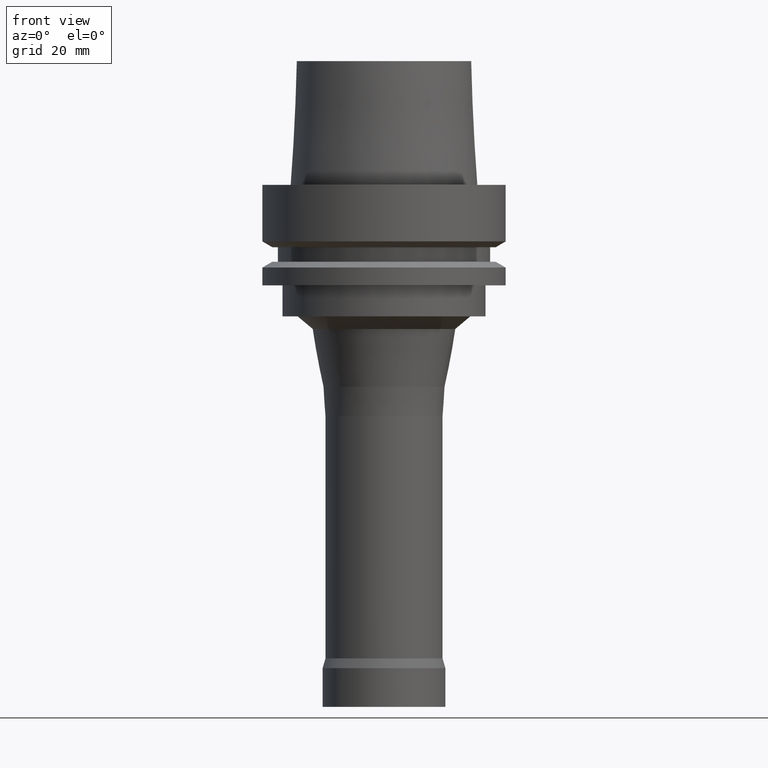
[diagram: clean part render]
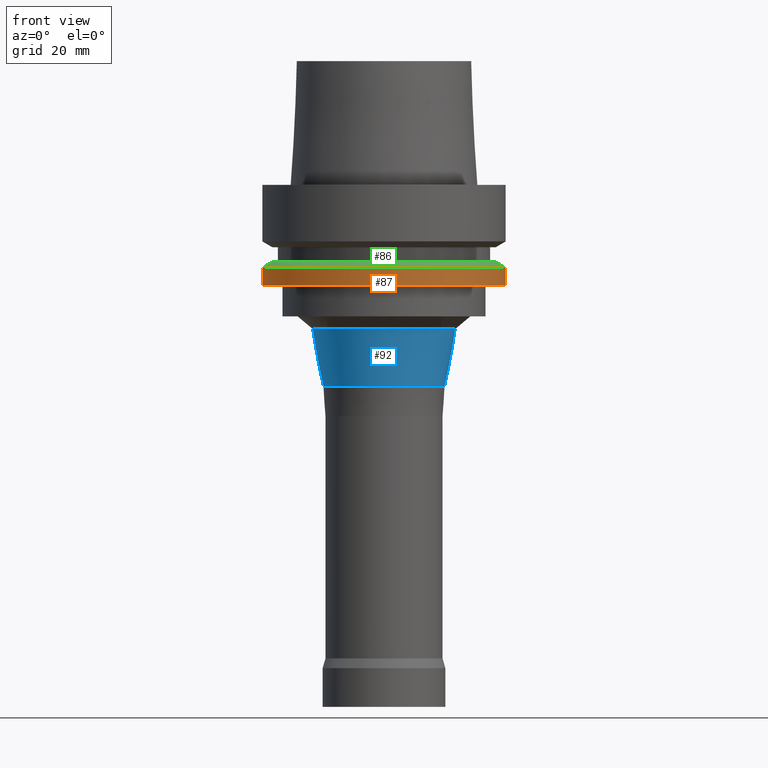
[diagram: same view with three faces highlighted in distinct colors, each labeled with its STEP entity id]
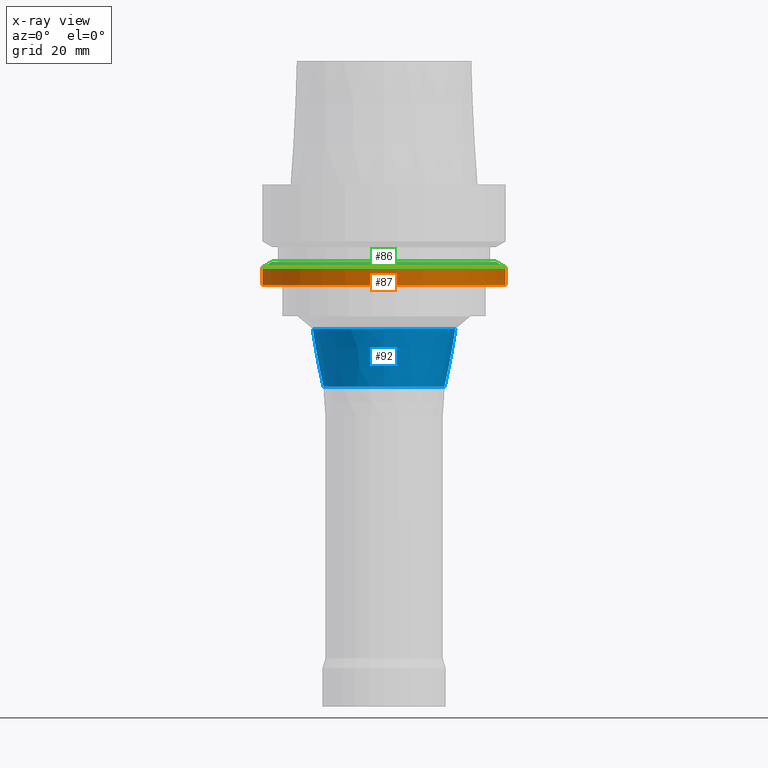
[diagram: x-ray of the same camera — body ghosted, the three highlighted faces saturated]
A machine part, front view with three faces highlighted in distinct colors.
The next image is the same camera in x-ray (body ghosted, the three faces saturated) — at least one of them is partly hidden behind the body in this view.
Their STEP definitions:

[orange] entity #87 — the highlighted cylindrical surface (bore or boss wall) has radius 31.5 mm, axis along (-0, -0, 1).
#87=ADVANCED_FACE('',(#131,#132),#133,.T.);
#131=FACE_BOUND('',#189,.T.);
#132=FACE_BOUND('',#190,.T.);
#133=CYLINDRICAL_SURFACE('',#191,31.5);
#189=EDGE_LOOP('',(#271));
#190=EDGE_LOOP('',(#272));
#191=AXIS2_PLACEMENT_3D('',#273,#274,#275);
#271=ORIENTED_EDGE('',*,*,#323,.F.);
#272=ORIENTED_EDGE('',*,*,#322,.T.);
#273=CARTESIAN_POINT('',(1.45051756469206E-015,2.90103512938411E-015,-23.688749535));
#274=DIRECTION('',(-6.12323399573677E-017,-1.22464679914735E-016,1.0));
#275=DIRECTION('',(-1.23259516440783E-032,1.0,1.22464679914735E-016));
#322=EDGE_CURVE('',#353,#353,#354,.T.);
#323=EDGE_CURVE('',#355,#355,#356,.T.);
#353=VERTEX_POINT('',#391);
#354=CIRCLE('',#392,31.5);
#355=VERTEX_POINT('',#393);
#356=CIRCLE('',#394,31.5);
#391=CARTESIAN_POINT('',(1.30899429049255E-015,31.5,-21.37749907));
#392=AXIS2_PLACEMENT_3D('',#441,#442,#443);
#393=CARTESIAN_POINT('',(1.59204083889156E-015,31.5,-26.0));
#394=AXIS2_PLACEMENT_3D('',#444,#445,#446);
#441=CARTESIAN_POINT('',(1.30899429049255E-015,2.6179885809851E-015,-21.37749907));
#442=DIRECTION('',(6.12323399573677E-017,1.22464679914735E-016,-1.0));
#443=DIRECTION('',(-1.23259516440783E-032,1.0,1.22464679914735E-016));
#444=CARTESIAN_POINT('',(1.59204083889156E-015,3.18408167778312E-015,-26.0));
#445=DIRECTION('',(6.12323399573677E-017,1.22464679914735E-016,-1.0));
#446=DIRECTION('',(-1.23259516440783E-032,1.0,1.22464679914735E-016));

[blue] entity #92 — the highlighted conical surface has half-angle 10.626 deg.
#92=ADVANCED_FACE('',(#146,#147),#148,.T.);
#146=FACE_BOUND('',#204,.T.);
#147=FACE_BOUND('',#205,.T.);
#148=CONICAL_SURFACE('',#206,17.166544215,0.185466459168615);
#204=EDGE_LOOP('',(#296));
#205=EDGE_LOOP('',(#297));
#206=AXIS2_PLACEMENT_3D('',#298,#299,#300);
#296=ORIENTED_EDGE('',*,*,#314,.F.);
#297=ORIENTED_EDGE('',*,*,#327,.T.);
#298=CARTESIAN_POINT('',(2.73923572440001E-015,5.47847144880001E-015,-44.73511426));
#299=DIRECTION('',(-6.12323399573677E-017,-1.22464679914735E-016,1.0));
#300=DIRECTION('',(-1.23259516440783E-032,1.0,1.22464679914735E-016));
#314=EDGE_CURVE('',#337,#337,#338,.T.);
#327=EDGE_CURVE('',#363,#363,#364,.T.);
#337=VERTEX_POINT('',#375);
#338=CIRCLE('',#376,15.76448979);
#363=VERTEX_POINT('',#401);
#364=CIRCLE('',#402,18.56859864);
#375=CARTESIAN_POINT('',(3.19680873208101E-015,15.76448979,-52.20784857));
#376=AXIS2_PLACEMENT_3D('',#417,#418,#419);
#401=CARTESIAN_POINT('',(2.281662716719E-015,18.56859864,-37.26237995));
#402=AXIS2_PLACEMENT_3D('',#456,#457,#458);
#417=CARTESIAN_POINT('',(3.19680873208101E-015,6.39361746416202E-015,-52.20784857));
#418=DIRECTION('',(6.12323399573677E-017,1.22464679914735E-016,-1.0));
#419=DIRECTION('',(-1.23259516440783E-032,1.0,1.22464679914735E-016));
#456=CARTESIAN_POINT('',(2.281662716719E-015,4.563325433438E-015,-37.26237995));
#457=DIRECTION('',(6.12323399573677E-017,1.22464679914735E-016,-1.0));
#458=DIRECTION('',(-1.23259516440783E-032,1.0,1.22464679914735E-016));

[green] entity #86 — the highlighted conical surface has half-angle 60 deg.
#86=ADVANCED_FACE('',(#128,#129),#130,.T.);
#128=FACE_BOUND('',#186,.T.);
#129=FACE_BOUND('',#187,.T.);
#130=CONICAL_SURFACE('',#188,30.19879763,1.04719755326565);
#186=EDGE_LOOP('',(#266));
#187=EDGE_LOOP('',(#267));
#188=AXIS2_PLACEMENT_3D('',#268,#269,#270);
#266=ORIENTED_EDGE('',*,*,#322,.F.);
#267=ORIENTED_EDGE('',*,*,#321,.T.);
#268=CARTESIAN_POINT('',(1.26299352357262E-015,2.52598704714523E-015,-20.626249535));
#269=DIRECTION('',(6.12323399573677E-017,1.22464679914735E-016,-1.0));
#270=DIRECTION('',(-1.23259516440783E-032,1.0,1.22464679914735E-016));
#321=EDGE_CURVE('',#351,#351,#352,.T.);
#322=EDGE_CURVE('',#353,#353,#354,.T.);
#351=VERTEX_POINT('',#389);
#352=CIRCLE('',#390,28.89759526);
#353=VERTEX_POINT('',#391);
#354=CIRCLE('',#392,31.5);
#389=CARTESIAN_POINT('',(1.21699275665268E-015,28.89759526,-19.875));
#390=AXIS2_PLACEMENT_3D('',#438,#439,#440);
#391=CARTESIAN_POINT('',(1.30899429049255E-015,31.5,-21.37749907));
#392=AXIS2_PLACEMENT_3D('',#441,#442,#443);
#438=CARTESIAN_POINT('',(1.21699275665268E-015,2.43398551330536E-015,-19.875));
#439=DIRECTION('',(6.12323399573677E-017,1.22464679914735E-016,-1.0));
#440=DIRECTION('',(-1.23259516440783E-032,1.0,1.22464679914735E-016));
#441=CARTESIAN_POINT('',(1.30899429049255E-015,2.6179885809851E-015,-21.37749907));
#442=DIRECTION('',(6.12323399573677E-017,1.22464679914735E-016,-1.0));
#443=DIRECTION('',(-1.23259516440783E-032,1.0,1.22464679914735E-016));